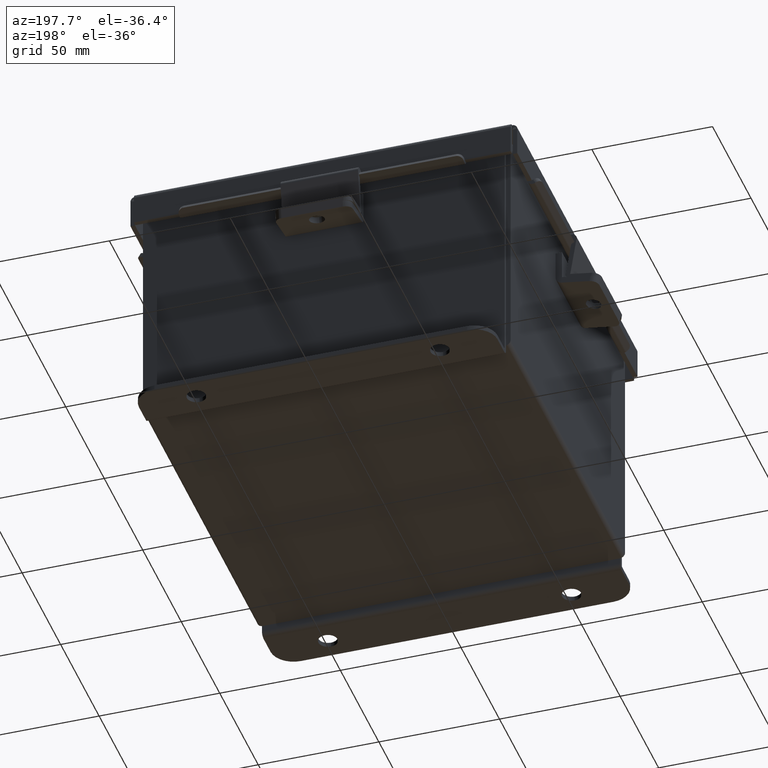
[diagram: clean part render]
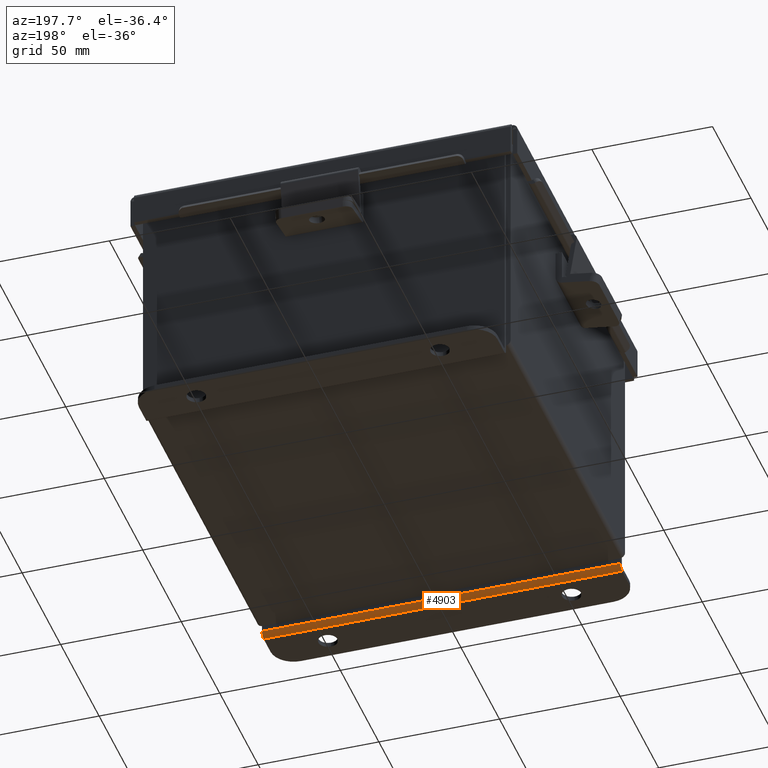
[diagram: same view with one face highlighted and labeled with its STEP entity id]
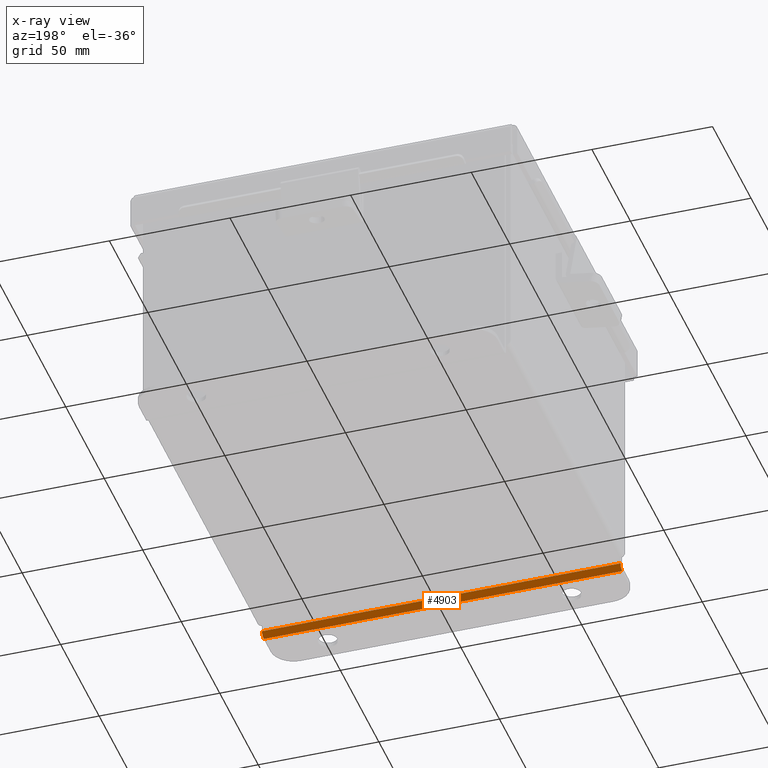
[diagram: x-ray of the same camera — body ghosted, the highlighted face saturated]
A machine part, auxiliary view. The second image highlights one B-rep face of the part: STEP entity #4903.
The next image is the same camera in x-ray: the body ghosted, the highlighted face saturated — about 0% of this face is hidden behind the body in this view.
In plain terms, the highlighted cylindrical surface (edge-blend (fillet) strip) has radius 2.2276 mm, axis along (1, 0, -0).
Its self-contained STEP definition (entity closure, byte-faithful):
#387 = AXIS2_PLACEMENT_3D ( 'NONE', #7169, #528, #4965 ) ;
#504 = VERTEX_POINT ( 'NONE', #7311 ) ;
#528 = DIRECTION ( 'NONE',  ( 1.000000000000000000, 4.910036603141682400E-031, -0.0000000000000000000 ) ) ;
#681 = DIRECTION ( 'NONE',  ( -1.000000000000000000, -4.910036603141682400E-031, 0.0000000000000000000 ) ) ;
#841 = CARTESIAN_POINT ( 'NONE',  ( -2.925300000000000000, 0.01300000000000065300, -2.186999999999998900 ) ) ;
#1463 = DIRECTION ( 'NONE',  ( 0.0000000000000000000, -3.334014886794506100E-015, -1.000000000000000000 ) ) ;
#1775 = CIRCLE ( 'NONE', #387, 0.08770000000000000000 ) ;
#1822 = CYLINDRICAL_SURFACE ( 'NONE', #2258, 0.08770000000000000000 ) ;
#2026 = ORIENTED_EDGE ( 'NONE', *, *, #2604, .F. ) ;
#2258 = AXIS2_PLACEMENT_3D ( 'NONE', #8672, #681, #1463 ) ;
#2366 = DIRECTION ( 'NONE',  ( 0.0000000000000000000, 0.0000000000000000000, 1.000000000000000000 ) ) ;
#2535 = VERTEX_POINT ( 'NONE', #4556 ) ;
#2604 = EDGE_CURVE ( 'NONE', #2535, #4068, #1775, .T. ) ;
#2795 = ORIENTED_EDGE ( 'NONE', *, *, #7687, .F. ) ;
#2942 = CIRCLE ( 'NONE', #6012, 0.08770000000000000000 ) ;
#3136 = FACE_OUTER_BOUND ( 'NONE', #4719, .T. ) ;
#3720 = EDGE_CURVE ( 'NONE', #5156, #4068, #4532, .T. ) ;
#3802 = CARTESIAN_POINT ( 'NONE',  ( 2.925299999999999600, 0.01300000000000502500, -2.186999999999998900 ) ) ;
#4068 = VERTEX_POINT ( 'NONE', #6942 ) ;
#4316 = CARTESIAN_POINT ( 'NONE',  ( -2.925300000000004900, -0.07470000000000015500, -2.099299999999999100 ) ) ;
#4532 = LINE ( 'NONE', #3802, #6270 ) ;
#4556 = CARTESIAN_POINT ( 'NONE',  ( 2.925299999999995100, -0.07469999999999579800, -2.099299999999999100 ) ) ;
#4719 = EDGE_LOOP ( 'NONE', ( #9534, #2795, #5630, #2026 ) ) ;
#4903 = ADVANCED_FACE ( 'NONE', ( #3136 ), #1822, .T. ) ;
#4965 = DIRECTION ( 'NONE',  ( 0.0000000000000000000, 0.0000000000000000000, 1.000000000000000000 ) ) ;
#5127 = EDGE_CURVE ( 'NONE', #504, #2535, #8406, .T. ) ;
#5156 = VERTEX_POINT ( 'NONE', #841 ) ;
#5630 = ORIENTED_EDGE ( 'NONE', *, *, #3720, .T. ) ;
#6012 = AXIS2_PLACEMENT_3D ( 'NONE', #7583, #8356, #2366 ) ;
#6270 = VECTOR ( 'NONE', #8770, 39.37007874015748100 ) ;
#6942 = CARTESIAN_POINT ( 'NONE',  ( 2.925299999999999600, 0.01300000000000393200, -2.186999999999998900 ) ) ;
#7169 = CARTESIAN_POINT ( 'NONE',  ( 2.925299999999995100, 0.01300000000000393200, -2.099299999999999100 ) ) ;
#7311 = CARTESIAN_POINT ( 'NONE',  ( -2.925300000000004500, -0.07470000000000015500, -2.099299999999999100 ) ) ;
#7427 = DIRECTION ( 'NONE',  ( 1.000000000000000000, 4.910036603141682400E-031, -0.0000000000000000000 ) ) ;
#7583 = CARTESIAN_POINT ( 'NONE',  ( -2.925300000000004500, 0.01299999999999956100, -2.099299999999999100 ) ) ;
#7687 = EDGE_CURVE ( 'NONE', #5156, #504, #2942, .T. ) ;
#8356 = DIRECTION ( 'NONE',  ( -1.000000000000000000, -4.910036603141682400E-031, 0.0000000000000000000 ) ) ;
#8406 = LINE ( 'NONE', #4316, #8760 ) ;
#8672 = CARTESIAN_POINT ( 'NONE',  ( -2.925300000000004900, 0.01299999999999956100, -2.099299999999999100 ) ) ;
#8760 = VECTOR ( 'NONE', #7427, 39.37007874015748100 ) ;
#8770 = DIRECTION ( 'NONE',  ( 1.000000000000000000, 4.910036603141682400E-031, -0.0000000000000000000 ) ) ;
#9534 = ORIENTED_EDGE ( 'NONE', *, *, #5127, .F. ) ;